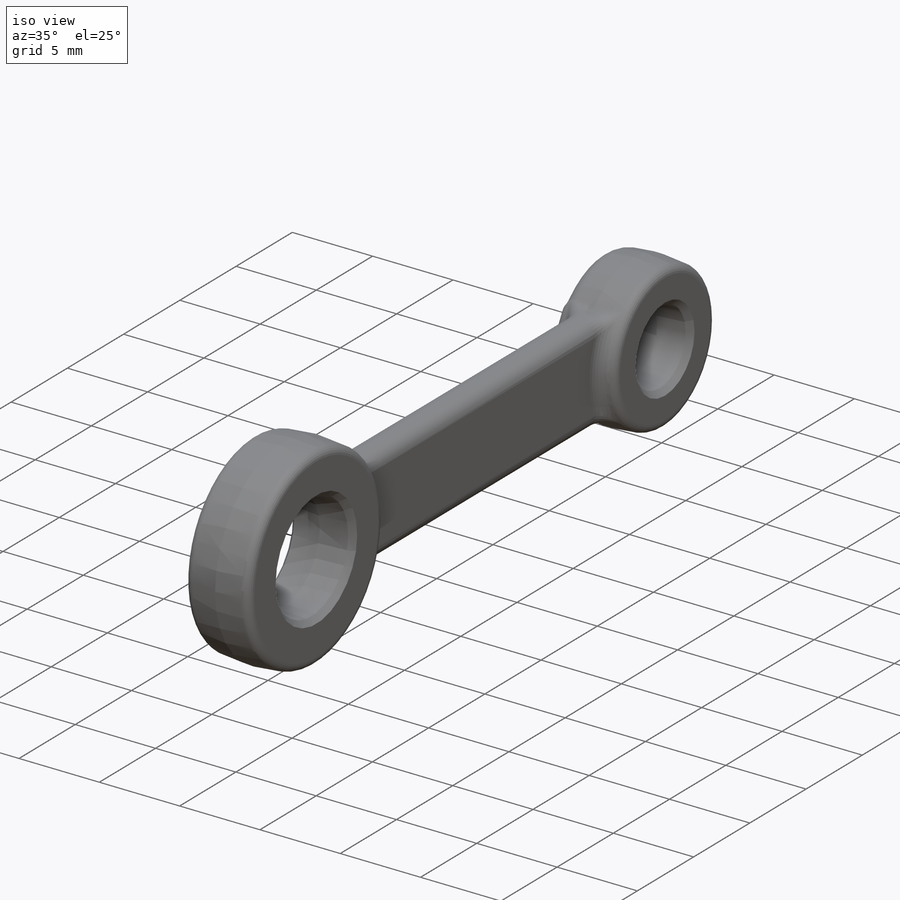
[diagram: iso view]
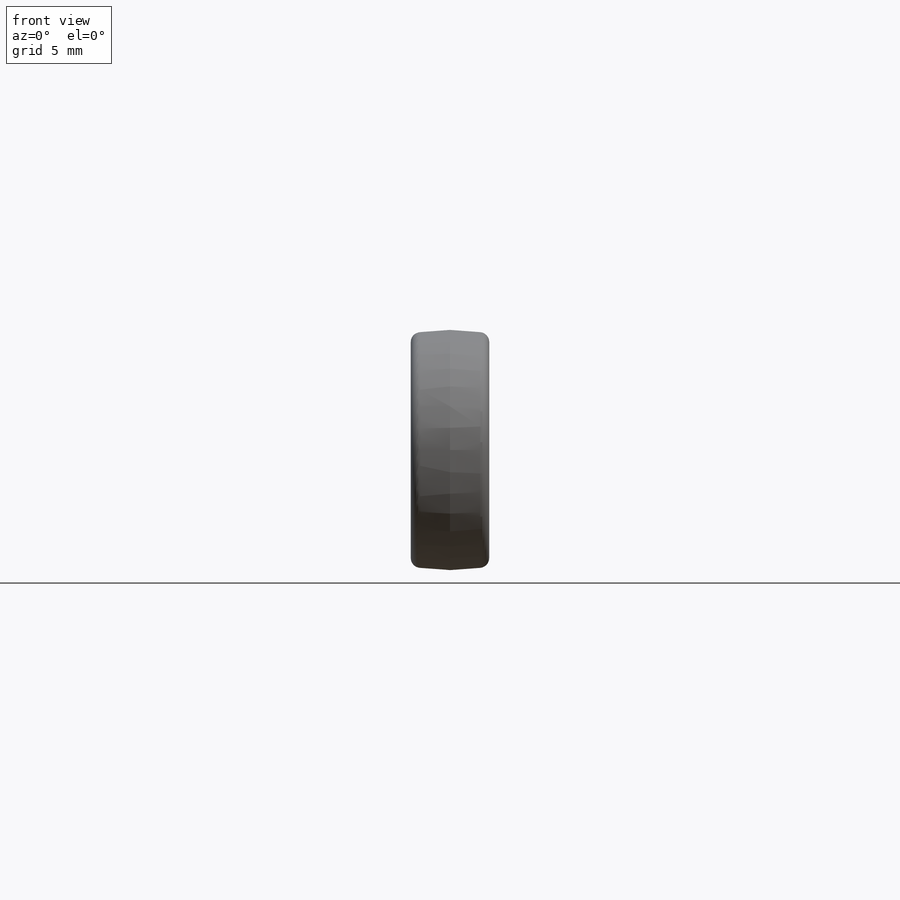
[diagram: front view]
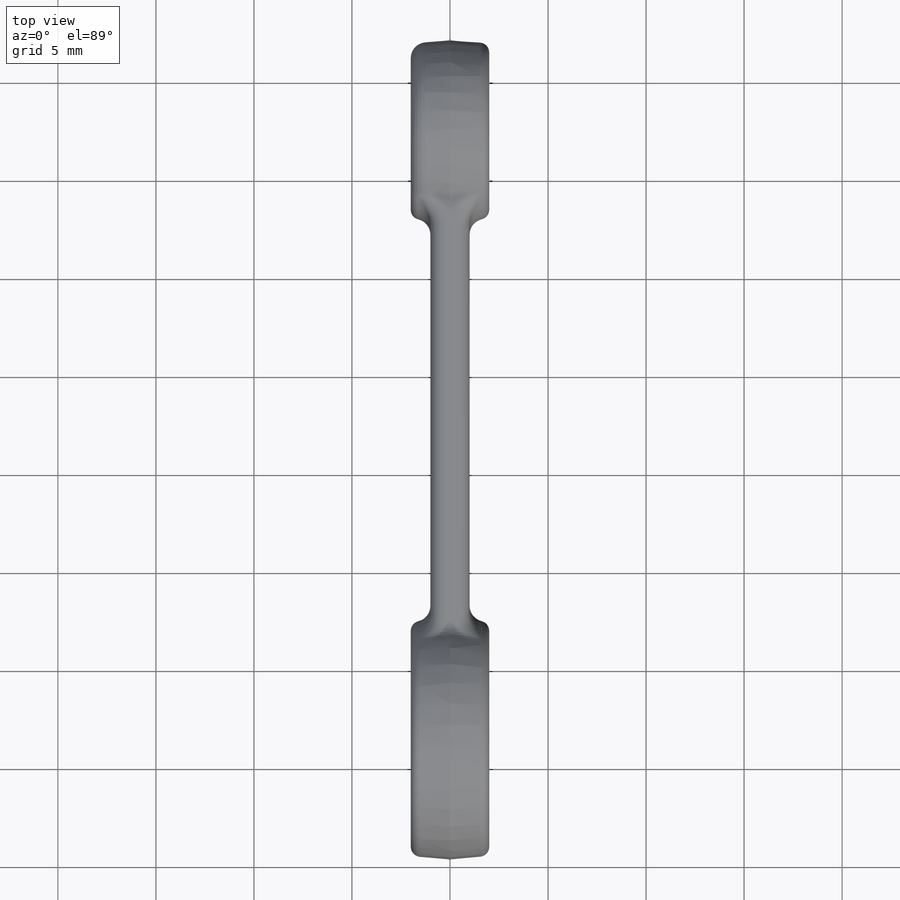
[diagram: top view]
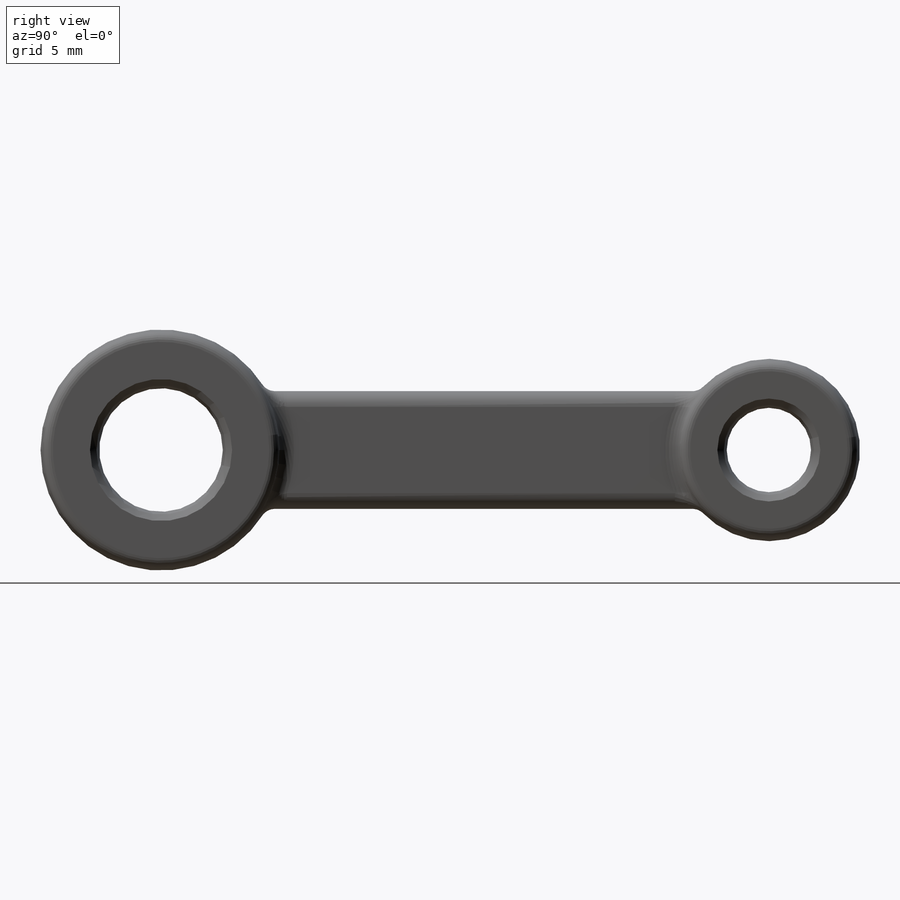
[diagram: right view]
SOLIDWORKS PART (.sldprt)
format: sldprt  version: not decoded by parser v0  size: 478,208 bytes
history: native  units: mm
features: fillet x5, sketch x2, extrude x2, material x1, chamfer x1 (+12 scaffold rows collapsed)
feature tree (23):
  scaffold x12  (default folders/planes/origin — collapsed)
  material  "Material <not specified>"
  sketch  "Sketch1"  dims[D1=12.3mm D2=9.3mm D4=6.3mm D5=4.3mm D3=31.0mm D6=6.0mm]
  extrude  "Boss-Extrude1"  Depth=4mm
  extrude  "Boss-Extrude2"  [1 undecoded]
  sketch  "Sketch1<3>"  dims[D1=2.0mm]
  chamfer  "Chamfer1"  Distance=0.3mm Angle=45deg
  fillet  "Fillet1"  Radius=0.5mm
  fillet  "Fillet2"  Radius=0.8mm
  fillet  "Fillet3"  Radius=0.8mm
  fillet  "Fillet4"  Radius=0.8mm
  fillet  "Fillet5"  Radius=0.8mm
decode coverage: 9 of 10 modeling features carry decoded parameters
note: 1 parameter value undecoded
note: suppression state not decoded; provenance and decode notes live in map.json
